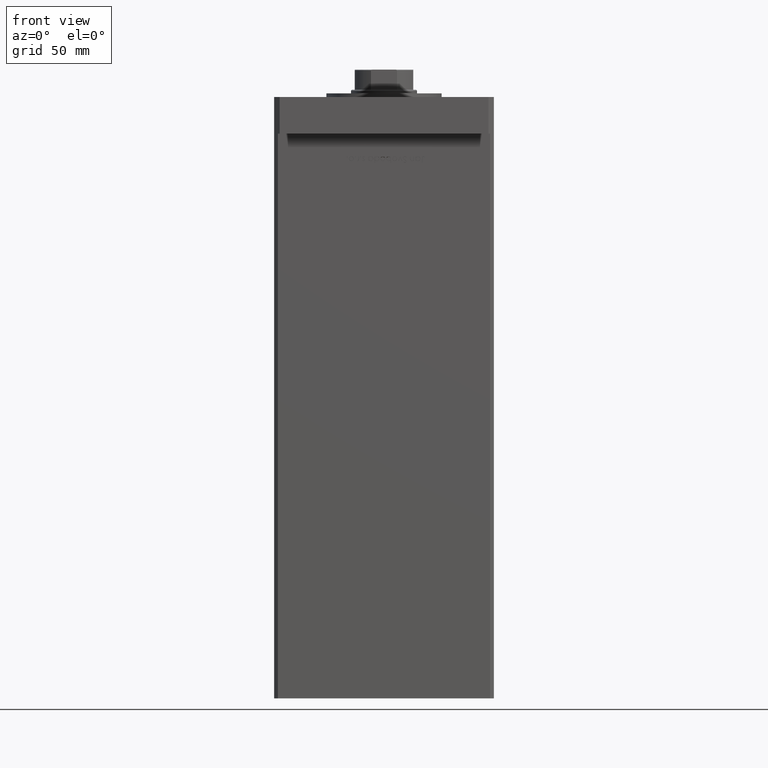
[diagram: clean part render]
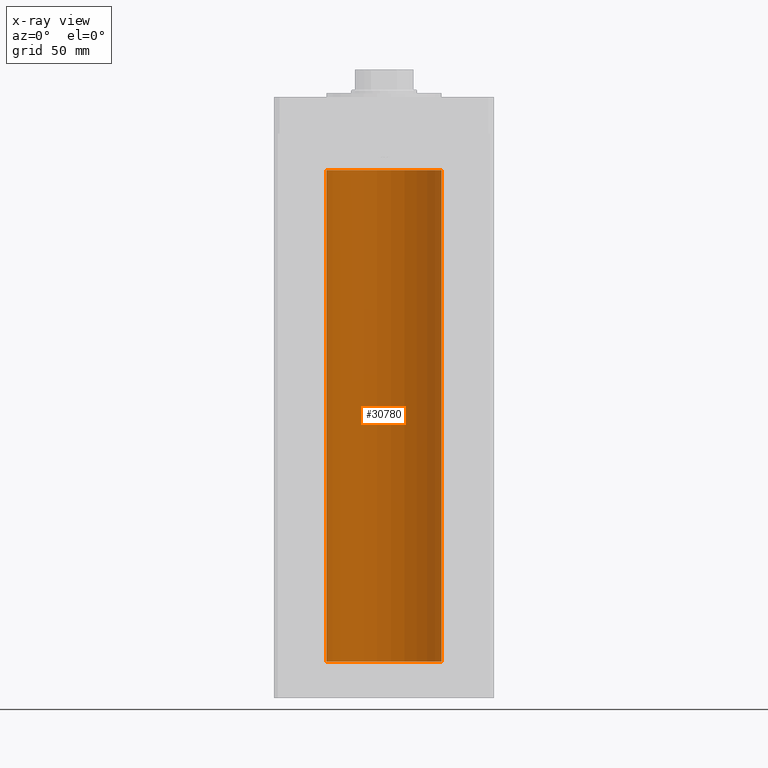
[diagram: x-ray — body ghosted, one internal face saturated and labeled with its STEP entity id]
A machine part, front view, then the same camera in x-ray: the body is ghosted and one INTERNAL B-rep face — a face not visible from any outside direction — is saturated and labeled: STEP entity #30780.
In plain terms, the highlighted cylindrical surface (partial cylindrical patch) has radius 31.5 mm, axis along (-0, -0, -1).
Its self-contained STEP definition (entity closure, byte-faithful):
#419 = DIRECTION ( 'NONE',  ( 1.000000000000000000, 0.000000000000000000, 0.000000000000000000 ) ) ;
#907 = LINE ( 'NONE', #29484, #4656 ) ;
#2104 = CIRCLE ( 'NONE', #15164, 31.50000000000000000 ) ;
#4656 = VECTOR ( 'NONE', #50471, 1000.000000000000000 ) ;
#4729 = CARTESIAN_POINT ( 'NONE',  ( 0.000000000000000000, 0.000000000000000000, 268.5000000000000000 ) ) ;
#6715 = FACE_OUTER_BOUND ( 'NONE', #13200, .T. ) ;
#7715 = EDGE_CURVE ( 'NONE', #36375, #25871, #7992, .T. ) ;
#7992 = CIRCLE ( 'NONE', #44467, 31.50000000000000000 ) ;
#13130 = DIRECTION ( 'NONE',  ( 1.000000000000000000, 0.000000000000000000, 0.000000000000000000 ) ) ;
#13200 = EDGE_LOOP ( 'NONE', ( #28209, #28614, #49997, #46163 ) ) ;
#15164 = AXIS2_PLACEMENT_3D ( 'NONE', #29261, #37425, #419 ) ;
#19228 = EDGE_CURVE ( 'NONE', #44907, #20716, #2104, .T. ) ;
#19491 = DIRECTION ( 'NONE',  ( -1.000000000000000000, 0.000000000000000000, 0.000000000000000000 ) ) ;
#20716 = VERTEX_POINT ( 'NONE', #50202 ) ;
#23417 = DIRECTION ( 'NONE',  ( -0.000000000000000000, -0.000000000000000000, -1.000000000000000000 ) ) ;
#24382 = DIRECTION ( 'NONE',  ( -0.000000000000000000, 0.000000000000000000, 1.000000000000000000 ) ) ;
#25871 = VERTEX_POINT ( 'NONE', #28991 ) ;
#27091 = CYLINDRICAL_SURFACE ( 'NONE', #49506, 31.50000000000000000 ) ;
#28209 = ORIENTED_EDGE ( 'NONE', *, *, #29260, .F. ) ;
#28614 = ORIENTED_EDGE ( 'NONE', *, *, #7715, .T. ) ;
#28991 = CARTESIAN_POINT ( 'NONE',  ( -31.50000000000000000, 0.000000000000000000, 268.5000000000000000 ) ) ;
#29260 = EDGE_CURVE ( 'NONE', #36375, #44907, #48759, .T. ) ;
#29261 = CARTESIAN_POINT ( 'NONE',  ( 0.000000000000000000, 0.000000000000000000, 0.000000000000000000 ) ) ;
#29484 = CARTESIAN_POINT ( 'NONE',  ( -31.50000000000000000, 0.000000000000000000, 268.5000000000000000 ) ) ;
#30780 = ADVANCED_FACE ( 'NONE', ( #6715 ), #27091, .F. ) ;
#31733 = CARTESIAN_POINT ( 'NONE',  ( 0.000000000000000000, 0.000000000000000000, 268.5000000000000000 ) ) ;
#34740 = VECTOR ( 'NONE', #23417, 1000.000000000000000 ) ;
#36375 = VERTEX_POINT ( 'NONE', #51322 ) ;
#37425 = DIRECTION ( 'NONE',  ( -0.000000000000000000, 0.000000000000000000, 1.000000000000000000 ) ) ;
#42855 = EDGE_CURVE ( 'NONE', #25871, #20716, #907, .T. ) ;
#44123 = CARTESIAN_POINT ( 'NONE',  ( 31.50000000000000000, 3.857637417314162689E-15, 268.5000000000000000 ) ) ;
#44467 = AXIS2_PLACEMENT_3D ( 'NONE', #4729, #24382, #13130 ) ;
#44811 = DIRECTION ( 'NONE',  ( -0.000000000000000000, -0.000000000000000000, -1.000000000000000000 ) ) ;
#44907 = VERTEX_POINT ( 'NONE', #46456 ) ;
#46163 = ORIENTED_EDGE ( 'NONE', *, *, #19228, .F. ) ;
#46456 = CARTESIAN_POINT ( 'NONE',  ( 31.50000000000000000, 3.857637417314162689E-15, 0.000000000000000000 ) ) ;
#48759 = LINE ( 'NONE', #44123, #34740 ) ;
#49506 = AXIS2_PLACEMENT_3D ( 'NONE', #31733, #44811, #19491 ) ;
#49997 = ORIENTED_EDGE ( 'NONE', *, *, #42855, .T. ) ;
#50202 = CARTESIAN_POINT ( 'NONE',  ( -31.50000000000000000, 0.000000000000000000, 0.000000000000000000 ) ) ;
#50471 = DIRECTION ( 'NONE',  ( -0.000000000000000000, -0.000000000000000000, -1.000000000000000000 ) ) ;
#51322 = CARTESIAN_POINT ( 'NONE',  ( 31.50000000000000000, 3.857637417314162689E-15, 268.5000000000000000 ) ) ;